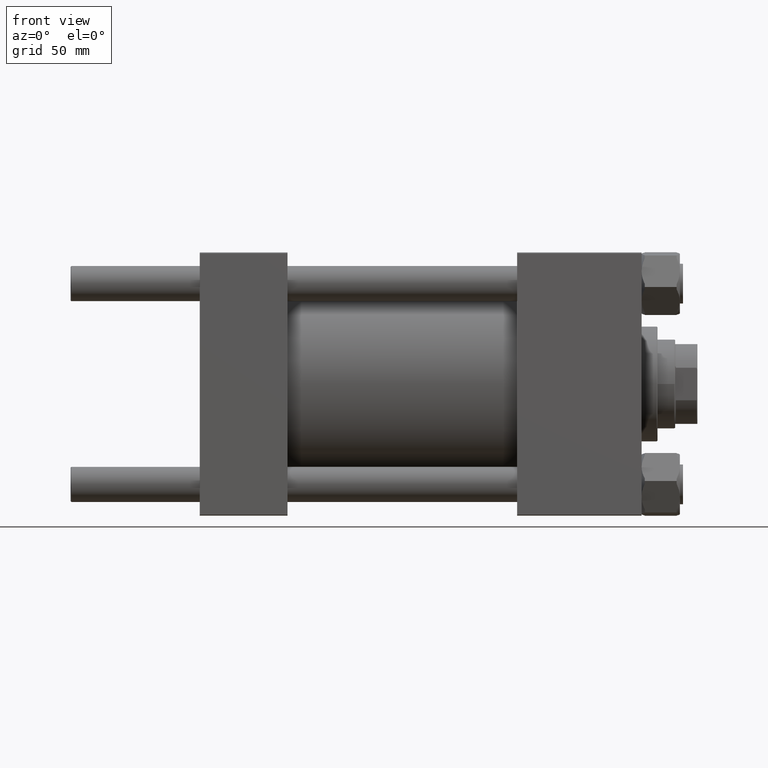
[diagram: clean part render]
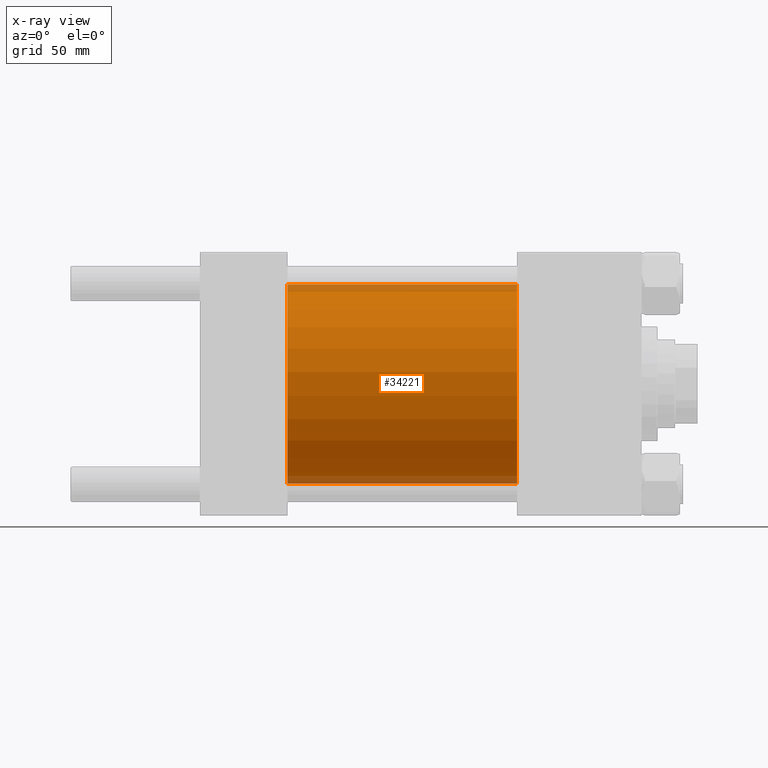
[diagram: x-ray — body ghosted, one internal face saturated and labeled with its STEP entity id]
A machine part, front view, then the same camera in x-ray: the body is ghosted and one INTERNAL B-rep face — a face not visible from any outside direction — is saturated and labeled: STEP entity #34221.
In plain terms, the highlighted cylindrical surface (partial cylindrical patch) has radius 62.5 mm, axis along (-1, -0, -0).
Its self-contained STEP definition (entity closure, byte-faithful):
#255 = ORIENTED_EDGE ( 'NONE', *, *, #46288, .F. ) ;
#1529 = EDGE_LOOP ( 'NONE', ( #37474, #31905, #255, #15267 ) ) ;
#2484 = CARTESIAN_POINT ( 'NONE',  ( 198.9999999999999716, 0.000000000000000000, 0.000000000000000000 ) ) ;
#3353 = DIRECTION ( 'NONE',  ( 0.000000000000000000, 0.000000000000000000, -1.000000000000000000 ) ) ;
#4056 = DIRECTION ( 'NONE',  ( -1.000000000000000000, -0.000000000000000000, -0.000000000000000000 ) ) ;
#4653 = DIRECTION ( 'NONE',  ( 0.000000000000000000, 0.000000000000000000, -1.000000000000000000 ) ) ;
#5253 = EDGE_CURVE ( 'NONE', #29954, #6062, #10249, .T. ) ;
#6062 = VERTEX_POINT ( 'NONE', #47457 ) ;
#7171 = VECTOR ( 'NONE', #33978, 1000.000000000000000 ) ;
#7423 = CARTESIAN_POINT ( 'NONE',  ( 55.00000000000000000, 0.000000000000000000, 0.000000000000000000 ) ) ;
#9280 = CIRCLE ( 'NONE', #36179, 62.50000000000000000 ) ;
#10249 = LINE ( 'NONE', #10497, #7171 ) ;
#10497 = CARTESIAN_POINT ( 'NONE',  ( 198.9999999999999716, 7.654042494670957804E-15, -62.50000000000000000 ) ) ;
#10952 = VECTOR ( 'NONE', #4056, 1000.000000000000000 ) ;
#12228 = LINE ( 'NONE', #34686, #10952 ) ;
#12249 = AXIS2_PLACEMENT_3D ( 'NONE', #2484, #13991, #25461 ) ;
#12982 = VERTEX_POINT ( 'NONE', #13904 ) ;
#13904 = CARTESIAN_POINT ( 'NONE',  ( 55.00000000000000000, 0.000000000000000000, 62.50000000000000000 ) ) ;
#13991 = DIRECTION ( 'NONE',  ( -1.000000000000000000, -0.000000000000000000, -0.000000000000000000 ) ) ;
#15267 = ORIENTED_EDGE ( 'NONE', *, *, #48544, .F. ) ;
#22733 = DIRECTION ( 'NONE',  ( 1.000000000000000000, 0.000000000000000000, 0.000000000000000000 ) ) ;
#23788 = CARTESIAN_POINT ( 'NONE',  ( 198.9999999999999716, 0.000000000000000000, 0.000000000000000000 ) ) ;
#24046 = DIRECTION ( 'NONE',  ( 1.000000000000000000, 0.000000000000000000, 0.000000000000000000 ) ) ;
#25461 = DIRECTION ( 'NONE',  ( 0.000000000000000000, 0.000000000000000000, 1.000000000000000000 ) ) ;
#25954 = CYLINDRICAL_SURFACE ( 'NONE', #12249, 62.50000000000000000 ) ;
#26795 = CIRCLE ( 'NONE', #37390, 62.50000000000000000 ) ;
#27905 = CARTESIAN_POINT ( 'NONE',  ( 198.9999999999999716, 0.000000000000000000, 62.50000000000000000 ) ) ;
#28475 = CARTESIAN_POINT ( 'NONE',  ( 198.9999999999999716, 7.654042494670957804E-15, -62.50000000000000000 ) ) ;
#29954 = VERTEX_POINT ( 'NONE', #28475 ) ;
#31569 = EDGE_CURVE ( 'NONE', #48024, #29954, #26795, .T. ) ;
#31905 = ORIENTED_EDGE ( 'NONE', *, *, #5253, .T. ) ;
#33118 = FACE_OUTER_BOUND ( 'NONE', #1529, .T. ) ;
#33978 = DIRECTION ( 'NONE',  ( -1.000000000000000000, -0.000000000000000000, -0.000000000000000000 ) ) ;
#34221 = ADVANCED_FACE ( 'NONE', ( #33118 ), #25954, .F. ) ;
#34686 = CARTESIAN_POINT ( 'NONE',  ( 198.9999999999999716, 0.000000000000000000, 62.50000000000000000 ) ) ;
#36179 = AXIS2_PLACEMENT_3D ( 'NONE', #7423, #22733, #3353 ) ;
#37390 = AXIS2_PLACEMENT_3D ( 'NONE', #23788, #24046, #4653 ) ;
#37474 = ORIENTED_EDGE ( 'NONE', *, *, #31569, .T. ) ;
#46288 = EDGE_CURVE ( 'NONE', #12982, #6062, #9280, .T. ) ;
#47457 = CARTESIAN_POINT ( 'NONE',  ( 55.00000000000000000, 7.654042494670957804E-15, -62.50000000000000000 ) ) ;
#48024 = VERTEX_POINT ( 'NONE', #27905 ) ;
#48544 = EDGE_CURVE ( 'NONE', #48024, #12982, #12228, .T. ) ;